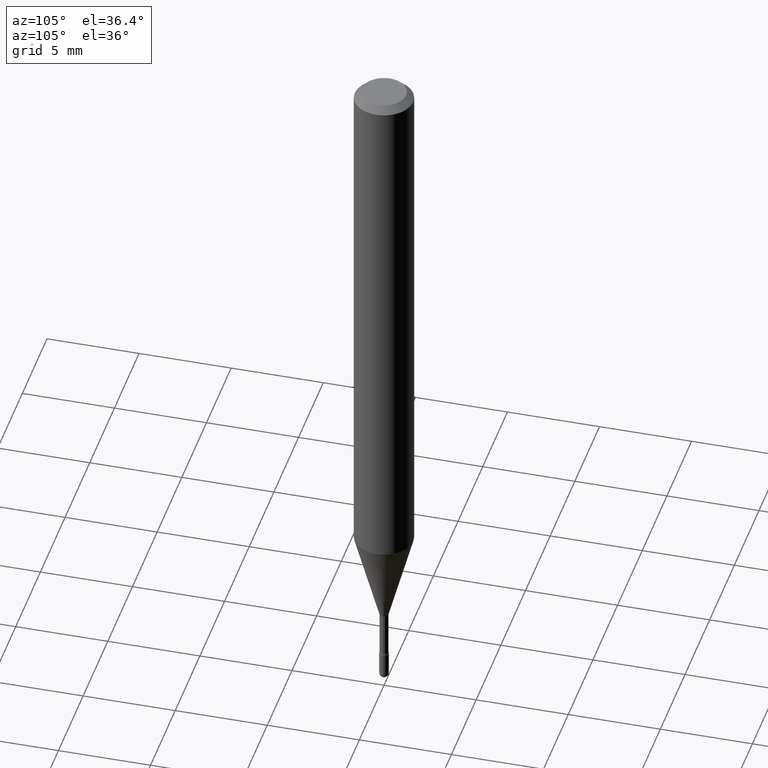
[diagram: clean part render]
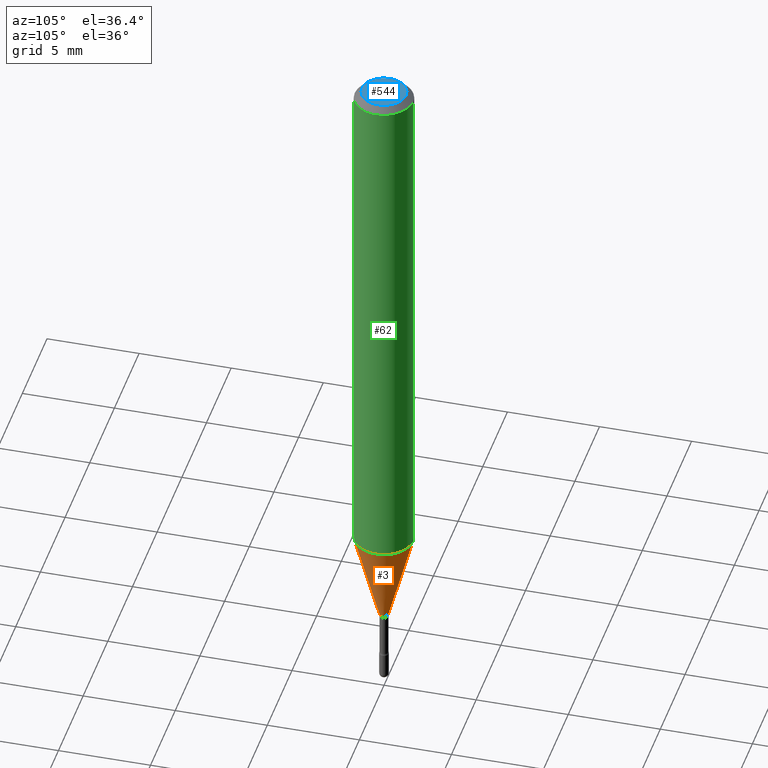
[diagram: same view with three faces highlighted in distinct colors, each labeled with its STEP entity id]
A machine part, auxiliary view with three faces highlighted in distinct colors.
Their STEP definitions:

[orange] entity #3 — the highlighted conical surface has half-angle 15 deg.
#3 = ADVANCED_FACE ( 'NONE', ( #163 ), #90, .T. ) ;
#13 = EDGE_CURVE ( 'NONE', #248, #423, #432, .T. ) ;
#15 = CARTESIAN_POINT ( 'NONE',  ( 2.572559502513361655E-16, 0.009911112605659305394, -1.338092501787273347 ) ) ;
#17 = VERTEX_POINT ( 'NONE', #156 ) ;
#22 = DIRECTION ( 'NONE',  ( -6.982962677686265922E-15, -1.000000000000000000, 0.000000000000000000 ) ) ;
#43 = EDGE_CURVE ( 'NONE', #375, #423, #260, .T. ) ;
#52 = VECTOR ( 'NONE', #349, 39.37007874015748854 ) ;
#66 = CARTESIAN_POINT ( 'NONE',  ( 3.272291353181348697E-29, -4.671885073502225665E-15, -1.338092501787273347 ) ) ;
#72 = ORIENTED_EDGE ( 'NONE', *, *, #43, .T. ) ;
#84 = DIRECTION ( 'NONE',  ( -6.982962677686265922E-15, -1.000000000000000000, 0.000000000000000000 ) ) ;
#90 = CONICAL_SURFACE ( 'NONE', #128, 0.009911112605663977004, 0.2617993877991500740 ) ;
#118 = DIRECTION ( 'NONE',  ( -2.445489642016968435E-29, 3.491451500746060163E-15, 1.000000000000000000 ) ) ;
#128 = AXIS2_PLACEMENT_3D ( 'NONE', #382, #293, #84 ) ;
#130 = CARTESIAN_POINT ( 'NONE',  ( -4.364351673553637142E-16, -0.06250000000000398293, -1.141828102118092936 ) ) ;
#151 = AXIS2_PLACEMENT_3D ( 'NONE', #258, #118, #160 ) ;
#156 = CARTESIAN_POINT ( 'NONE',  ( -6.920892941966470292E-17, -0.009911112605668648615, -1.338092501787273347 ) ) ;
#157 = EDGE_CURVE ( 'NONE', #17, #248, #520, .T. ) ;
#160 = DIRECTION ( 'NONE',  ( -6.982962677686265922E-15, -1.000000000000000000, 4.370956789862821150E-15 ) ) ;
#163 = FACE_OUTER_BOUND ( 'NONE', #411, .T. ) ;
#188 = CARTESIAN_POINT ( 'NONE',  ( 4.440892098500903249E-16, 0.06249999999999600320, -1.141828102118093602 ) ) ;
#239 = DIRECTION ( 'NONE',  ( -2.445489642016968435E-29, 3.491451500746060163E-15, 1.000000000000000000 ) ) ;
#248 = VERTEX_POINT ( 'NONE', #130 ) ;
#258 = CARTESIAN_POINT ( 'NONE',  ( 2.792328796693690568E-29, -3.986637440734242640E-15, -1.141828102118093380 ) ) ;
#259 = ORIENTED_EDGE ( 'NONE', *, *, #13, .F. ) ;
#260 = LINE ( 'NONE', #378, #388 ) ;
#293 = DIRECTION ( 'NONE',  ( -2.445489642016968435E-29, 3.491451500746060163E-15, 1.000000000000000000 ) ) ;
#329 = ORIENTED_EDGE ( 'NONE', *, *, #157, .F. ) ;
#349 = DIRECTION ( 'NONE',  ( -1.807323732225328562E-15, -0.2588190451025179639, 0.9659258262890690894 ) ) ;
#354 = CARTESIAN_POINT ( 'NONE',  ( -6.920892941966470292E-17, -0.009911112605668648615, -1.338092501787273347 ) ) ;
#364 = AXIS2_PLACEMENT_3D ( 'NONE', #66, #239, #22 ) ;
#375 = VERTEX_POINT ( 'NONE', #15 ) ;
#376 = EDGE_CURVE ( 'NONE', #17, #375, #470, .T. ) ;
#378 = CARTESIAN_POINT ( 'NONE',  ( 7.042269065258168553E-17, 0.009911112605659305394, -1.338092501787273347 ) ) ;
#382 = CARTESIAN_POINT ( 'NONE',  ( 3.272291353181348697E-29, -4.671885073502225665E-15, -1.338092501787273347 ) ) ;
#385 = ORIENTED_EDGE ( 'NONE', *, *, #376, .T. ) ;
#388 = VECTOR ( 'NONE', #519, 39.37007874015748854 ) ;
#411 = EDGE_LOOP ( 'NONE', ( #385, #72, #259, #329 ) ) ;
#423 = VERTEX_POINT ( 'NONE', #188 ) ;
#432 = CIRCLE ( 'NONE', #151, 0.06250000000000000000 ) ;
#470 = CIRCLE ( 'NONE', #364, 0.009911112605663977004 ) ;
#519 = DIRECTION ( 'NONE',  ( 1.839019923739598738E-15, 0.2588190451025247363, 0.9659258262890673130 ) ) ;
#520 = LINE ( 'NONE', #354, #52 ) ;

[blue] entity #544 — the highlighted planar face has unit normal (0, -0, -1).
#11 = DIRECTION ( 'NONE',  ( 2.445489642016968715E-29, -3.491451500746059769E-15, -1.000000000000000000 ) ) ;
#12 = DIRECTION ( 'NONE',  ( -2.445489642016968435E-29, 3.491451500746060163E-15, 1.000000000000000000 ) ) ;
#67 = CARTESIAN_POINT ( 'NONE',  ( 2.023704369115274209E-45, -2.888979329757598670E-31, -8.274844938115695754E-17 ) ) ;
#74 = EDGE_LOOP ( 'NONE', ( #456, #148 ) ) ;
#96 = CARTESIAN_POINT ( 'NONE',  ( 2.023704369115274209E-45, -2.888979329757598670E-31, -8.274844938115695754E-17 ) ) ;
#97 = CARTESIAN_POINT ( 'NONE',  ( 3.316907271900976096E-16, 0.04749999999999999362, 3.181852846960672985E-17 ) ) ;
#100 = EDGE_CURVE ( 'NONE', #566, #539, #223, .T. ) ;
#135 = AXIS2_PLACEMENT_3D ( 'NONE', #96, #436, #529 ) ;
#148 = ORIENTED_EDGE ( 'NONE', *, *, #100, .T. ) ;
#178 = FACE_OUTER_BOUND ( 'NONE', #74, .T. ) ;
#223 = CIRCLE ( 'NONE', #135, 0.04749999999999999362 ) ;
#245 = CIRCLE ( 'NONE', #458, 0.04749999999999999362 ) ;
#308 = CARTESIAN_POINT ( 'NONE',  ( -3.773273898774340269E-16, -0.04749999999999999362, 8.309549690428089627E-17 ) ) ;
#313 = DIRECTION ( 'NONE',  ( -6.982962677686266711E-15, -1.000000000000000000, 3.491451500746060558E-15 ) ) ;
#351 = AXIS2_PLACEMENT_3D ( 'NONE', #97, #11, #536 ) ;
#362 = CARTESIAN_POINT ( 'NONE',  ( 3.840629472727447874E-16, 0.04749999999999999362, -2.485923956665947867E-16 ) ) ;
#436 = DIRECTION ( 'NONE',  ( -2.445489642016968435E-29, 3.491451500746060163E-15, 1.000000000000000000 ) ) ;
#456 = ORIENTED_EDGE ( 'NONE', *, *, #464, .T. ) ;
#458 = AXIS2_PLACEMENT_3D ( 'NONE', #67, #12, #313 ) ;
#464 = EDGE_CURVE ( 'NONE', #539, #566, #245, .T. ) ;
#529 = DIRECTION ( 'NONE',  ( -6.982962677686266711E-15, -1.000000000000000000, 3.491451500746060558E-15 ) ) ;
#533 = PLANE ( 'NONE',  #351 ) ;
#536 = DIRECTION ( 'NONE',  ( 6.982962677686265922E-15, 1.000000000000000000, -3.491451500746059769E-15 ) ) ;
#539 = VERTEX_POINT ( 'NONE', #362 ) ;
#544 = ADVANCED_FACE ( 'NONE', ( #178 ), #533, .F. ) ;
#566 = VERTEX_POINT ( 'NONE', #308 ) ;

[green] entity #62 — the highlighted cylindrical surface (edge-blend (fillet) strip) has radius 1.5875 mm, axis along (-0, 0, 1).
#13 = EDGE_CURVE ( 'NONE', #248, #423, #432, .T. ) ;
#35 = EDGE_CURVE ( 'NONE', #141, #371, #480, .T. ) ;
#62 = ADVANCED_FACE ( 'NONE', ( #554 ), #123, .T. ) ;
#63 = CARTESIAN_POINT ( 'NONE',  ( -4.364351673553916201E-16, -0.06250000000000000000, 6.962891176878747988E-16 ) ) ;
#77 = CARTESIAN_POINT ( 'NONE',  ( -1.169113584055446105E-44, 1.669184350826100908E-30, 4.780733988912460139E-16 ) ) ;
#105 = ORIENTED_EDGE ( 'NONE', *, *, #13, .T. ) ;
#106 = VECTOR ( 'NONE', #406, 39.37007874015748143 ) ;
#118 = DIRECTION ( 'NONE',  ( -2.445489642016968435E-29, 3.491451500746060163E-15, 1.000000000000000000 ) ) ;
#123 = CYLINDRICAL_SURFACE ( 'NONE', #537, 0.06250000000000000000 ) ;
#130 = CARTESIAN_POINT ( 'NONE',  ( -4.364351673553637142E-16, -0.06250000000000398293, -1.141828102118092936 ) ) ;
#137 = LINE ( 'NONE', #409, #106 ) ;
#141 = VERTEX_POINT ( 'NONE', #265 ) ;
#151 = AXIS2_PLACEMENT_3D ( 'NONE', #258, #118, #160 ) ;
#152 = DIRECTION ( 'NONE',  ( -2.445489642016968435E-29, 3.491451500746060163E-15, 1.000000000000000000 ) ) ;
#160 = DIRECTION ( 'NONE',  ( -6.982962677686265922E-15, -1.000000000000000000, 4.370956789862821150E-15 ) ) ;
#181 = LINE ( 'NONE', #63, #271 ) ;
#188 = CARTESIAN_POINT ( 'NONE',  ( 4.440892098500903249E-16, 0.06249999999999600320, -1.141828102118093602 ) ) ;
#236 = ORIENTED_EDGE ( 'NONE', *, *, #35, .F. ) ;
#237 = DIRECTION ( 'NONE',  ( -2.445489642016968435E-29, 3.491451500746059769E-15, 1.000000000000000000 ) ) ;
#248 = VERTEX_POINT ( 'NONE', #130 ) ;
#251 = CARTESIAN_POINT ( 'NONE',  ( 3.668234463025472883E-31, -5.237177251119118989E-17, -0.01500000000000008271 ) ) ;
#255 = DIRECTION ( 'NONE',  ( -6.982962677686265922E-15, -1.000000000000000000, 3.483106191921935554E-15 ) ) ;
#258 = CARTESIAN_POINT ( 'NONE',  ( 2.792328796693690568E-29, -3.986637440734242640E-15, -1.141828102118093380 ) ) ;
#265 = CARTESIAN_POINT ( 'NONE',  ( -4.364351673553912750E-16, -0.06250000000000005551, -0.01499999999999986587 ) ) ;
#271 = VECTOR ( 'NONE', #237, 39.37007874015748143 ) ;
#304 = AXIS2_PLACEMENT_3D ( 'NONE', #251, #515, #255 ) ;
#318 = EDGE_LOOP ( 'NONE', ( #105, #335, #236, #430 ) ) ;
#327 = CARTESIAN_POINT ( 'NONE',  ( 4.440892098500906207E-16, 0.06249999999999993755, -0.01500000000000030129 ) ) ;
#331 = EDGE_CURVE ( 'NONE', #248, #141, #181, .T. ) ;
#335 = ORIENTED_EDGE ( 'NONE', *, *, #340, .T. ) ;
#340 = EDGE_CURVE ( 'NONE', #423, #371, #137, .T. ) ;
#371 = VERTEX_POINT ( 'NONE', #327 ) ;
#406 = DIRECTION ( 'NONE',  ( -2.445489642016968435E-29, 3.491451500746059769E-15, 1.000000000000000000 ) ) ;
#409 = CARTESIAN_POINT ( 'NONE',  ( 4.440892098500625669E-16, 0.06250000000000000000, 2.598576800946173277E-16 ) ) ;
#423 = VERTEX_POINT ( 'NONE', #188 ) ;
#426 = DIRECTION ( 'NONE',  ( -6.982962677686265922E-15, -1.000000000000000000, 3.491451500746058980E-15 ) ) ;
#430 = ORIENTED_EDGE ( 'NONE', *, *, #331, .F. ) ;
#432 = CIRCLE ( 'NONE', #151, 0.06250000000000000000 ) ;
#480 = CIRCLE ( 'NONE', #304, 0.06250000000000000000 ) ;
#515 = DIRECTION ( 'NONE',  ( -2.445489642016968435E-29, 3.491451500746060163E-15, 1.000000000000000000 ) ) ;
#537 = AXIS2_PLACEMENT_3D ( 'NONE', #77, #152, #426 ) ;
#554 = FACE_OUTER_BOUND ( 'NONE', #318, .T. ) ;